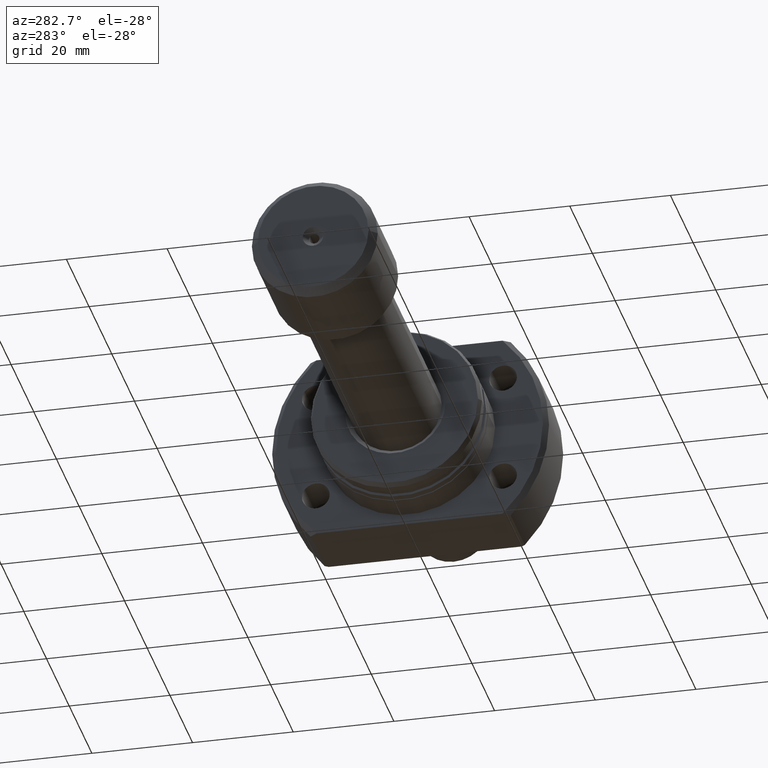
[diagram: clean part render]
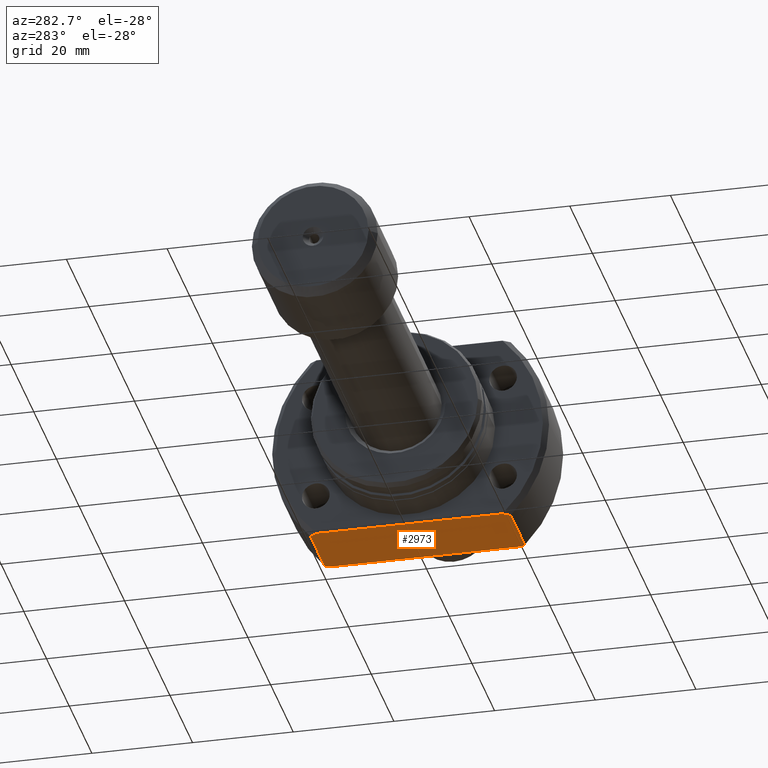
[diagram: same view with one face highlighted and labeled with its STEP entity id]
A machine part, auxiliary view. The second image highlights one B-rep face of the part: STEP entity #2973.
In plain terms, the highlighted planar face has unit normal (0, 0, 1).
Its self-contained STEP definition (entity closure, byte-faithful):
#143 = DIRECTION ( 'NONE',  ( 1.000000000000000000, -2.886466111666351885E-14, -0.000000000000000000 ) ) ;
#216 = AXIS2_PLACEMENT_3D ( 'NONE', #920, #870, #2953 ) ;
#221 = EDGE_CURVE ( 'NONE', #983, #2972, #2723, .T. ) ;
#257 = CARTESIAN_POINT ( 'NONE',  ( 26.50000000000000355, -19.18332609325086580, -19.00000000000001066 ) ) ;
#323 = VECTOR ( 'NONE', #2845, 1000.000000000000000 ) ;
#334 = CARTESIAN_POINT ( 'NONE',  ( 26.50000000000000355, 19.18332609325086580, -19.00000000000001066 ) ) ;
#336 = ORIENTED_EDGE ( 'NONE', *, *, #2434, .F. ) ;
#340 = CARTESIAN_POINT ( 'NONE',  ( 26.50000000000000355, -19.18332609325086580, -19.00000000000001066 ) ) ;
#350 = CARTESIAN_POINT ( 'NONE',  ( 26.16766778152495476, 19.64897098899369610, -19.00000000000001066 ) ) ;
#393 = VERTEX_POINT ( 'NONE', #3291 ) ;
#406 = CARTESIAN_POINT ( 'NONE',  ( 13.16251021117672160, -19.41406682004138418, -19.00000000000001066 ) ) ;
#595 = B_SPLINE_CURVE_WITH_KNOTS ( 'NONE', 3,
 ( #2747, #3574, #406, #1846 ),
 .UNSPECIFIED., .F., .F.,
 ( 4, 4 ),
 ( 0.07360185391654981701, 0.07534192973589430575 ),
 .UNSPECIFIED. ) ;
#607 = CARTESIAN_POINT ( 'NONE',  ( 12.50000000000000355, -18.47295320191106072, -19.00000000000001066 ) ) ;
#648 = CARTESIAN_POINT ( 'NONE',  ( 12.50000000000000355, 18.47295320191106072, -19.00000000000001066 ) ) ;
#678 = CARTESIAN_POINT ( 'NONE',  ( 12.50000000000000355, 18.47295320191106072, -19.00000000000001066 ) ) ;
#696 = DIRECTION ( 'NONE',  ( 9.242617352055502386E-18, -1.000000000000000000, 0.000000000000000000 ) ) ;
#725 = CARTESIAN_POINT ( 'NONE',  ( 13.16276636410033696, 19.41442114037127098, -19.00000000000001066 ) ) ;
#779 = VECTOR ( 'NONE', #143, 1000.000000000000000 ) ;
#803 = ORIENTED_EDGE ( 'NONE', *, *, #1528, .F. ) ;
#828 = LINE ( 'NONE', #3575, #779 ) ;
#835 = ORIENTED_EDGE ( 'NONE', *, *, #221, .F. ) ;
#870 = DIRECTION ( 'NONE',  ( 0.000000000000000000, 0.000000000000000000, 1.000000000000000000 ) ) ;
#902 = CARTESIAN_POINT ( 'NONE',  ( 26.00000000000007461, 19.88089535207093306, -18.99999999999999645 ) ) ;
#920 = CARTESIAN_POINT ( 'NONE',  ( -2.151057110211240797E-13, 19.88089535207168623, -19.00000000000001066 ) ) ;
#947 = ORIENTED_EDGE ( 'NONE', *, *, #1341, .F. ) ;
#974 = EDGE_CURVE ( 'NONE', #2216, #1219, #3256, .T. ) ;
#983 = VERTEX_POINT ( 'NONE', #648 ) ;
#991 = CARTESIAN_POINT ( 'NONE',  ( 26.50000000000000355, -27.00000000000000000, -19.00000000000001066 ) ) ;
#1051 = CARTESIAN_POINT ( 'NONE',  ( 12.50000000000000355, -16.99999999999999645, -19.00000000000001066 ) ) ;
#1168 = CARTESIAN_POINT ( 'NONE',  ( 26.33435831467464183, 19.41646217622441384, -19.00000000000001066 ) ) ;
#1219 = VERTEX_POINT ( 'NONE', #1530 ) ;
#1341 = EDGE_CURVE ( 'NONE', #3495, #1577, #828, .T. ) ;
#1517 = ORIENTED_EDGE ( 'NONE', *, *, #1871, .F. ) ;
#1522 = B_SPLINE_CURVE_WITH_KNOTS ( 'NONE', 3,
 ( #334, #1168, #350, #2071 ),
 .UNSPECIFIED., .F., .F.,
 ( 4, 4 ),
 ( 0.07446973138748344545, 0.07533421896860405254 ),
 .UNSPECIFIED. ) ;
#1528 = EDGE_CURVE ( 'NONE', #2972, #3495, #595, .T. ) ;
#1530 = CARTESIAN_POINT ( 'NONE',  ( 26.50000000000000355, 19.18332609325086580, -19.00000000000001066 ) ) ;
#1577 = VERTEX_POINT ( 'NONE', #3021 ) ;
#1582 = B_SPLINE_CURVE_WITH_KNOTS ( 'NONE', 3,
 ( #2249, #3379, #1953, #257 ),
 .UNSPECIFIED., .F., .F.,
 ( 4, 4 ),
 ( 0.03127512062948594601, 0.03213456893170306417 ),
 .UNSPECIFIED. ) ;
#1704 = VERTEX_POINT ( 'NONE', #902 ) ;
#1706 = LINE ( 'NONE', #3151, #323 ) ;
#1737 = ORIENTED_EDGE ( 'NONE', *, *, #3445, .F. ) ;
#1832 = FACE_OUTER_BOUND ( 'NONE', #1921, .T. ) ;
#1846 = CARTESIAN_POINT ( 'NONE',  ( 13.49999999999998757, -19.88089535207056358, -19.00000000000001066 ) ) ;
#1871 = EDGE_CURVE ( 'NONE', #393, #983, #2397, .T. ) ;
#1921 = EDGE_LOOP ( 'NONE', ( #3448, #1737, #3639, #336, #947, #803, #835, #1517 ) ) ;
#1953 = CARTESIAN_POINT ( 'NONE',  ( 26.33429591812844350, -19.41654999763448330, -19.00000000000001066 ) ) ;
#2071 = CARTESIAN_POINT ( 'NONE',  ( 26.00000000000007461, 19.88089535207093306, -18.99999999999999645 ) ) ;
#2216 = VERTEX_POINT ( 'NONE', #340 ) ;
#2249 = CARTESIAN_POINT ( 'NONE',  ( 26.00000000000007461, -19.88089535207092240, -19.00000000000001066 ) ) ;
#2397 = B_SPLINE_CURVE_WITH_KNOTS ( 'NONE', 3,
 ( #2865, #725, #2429, #678 ),
 .UNSPECIFIED., .F., .F.,
 ( 4, 4 ),
 ( 0.03128279945209441748, 0.03301205973984314840 ),
 .UNSPECIFIED. ) ;
#2429 = CARTESIAN_POINT ( 'NONE',  ( 12.82923531929442440, 18.94525104546319128, -19.00000000000001066 ) ) ;
#2434 = EDGE_CURVE ( 'NONE', #1577, #2216, #1582, .T. ) ;
#2569 = VECTOR ( 'NONE', #696, 1000.000000000000000 ) ;
#2571 = EDGE_CURVE ( 'NONE', #393, #1704, #1706, .T. ) ;
#2654 = PLANE ( 'NONE',  #216 ) ;
#2723 = LINE ( 'NONE', #1051, #2569 ) ;
#2747 = CARTESIAN_POINT ( 'NONE',  ( 12.50000000000000355, -18.47295320191106072, -19.00000000000001066 ) ) ;
#2845 = DIRECTION ( 'NONE',  ( 1.000000000000000000, -2.886466111666351885E-14, -0.000000000000000000 ) ) ;
#2865 = CARTESIAN_POINT ( 'NONE',  ( 13.49999999999998757, 19.88089535207129543, -18.99999999999999645 ) ) ;
#2953 = DIRECTION ( 'NONE',  ( 1.000000000000000000, 0.000000000000000000, -0.000000000000000000 ) ) ;
#2972 = VERTEX_POINT ( 'NONE', #607 ) ;
#2973 = ADVANCED_FACE ( 'NONE', ( #1832 ), #2654, .F. ) ;
#2977 = DIRECTION ( 'NONE',  ( -9.242617352055502386E-18, 1.000000000000000000, -0.000000000000000000 ) ) ;
#3021 = CARTESIAN_POINT ( 'NONE',  ( 26.00000000000007461, -19.88089535207092240, -19.00000000000001066 ) ) ;
#3151 = CARTESIAN_POINT ( 'NONE',  ( -2.151057110211240797E-13, 19.88089535207168268, -18.99999999999999645 ) ) ;
#3181 = CARTESIAN_POINT ( 'NONE',  ( 13.49999999999998757, -19.88089535207056358, -19.00000000000001066 ) ) ;
#3256 = LINE ( 'NONE', #991, #3364 ) ;
#3291 = CARTESIAN_POINT ( 'NONE',  ( 13.49999999999998757, 19.88089535207129543, -18.99999999999999645 ) ) ;
#3364 = VECTOR ( 'NONE', #2977, 1000.000000000000000 ) ;
#3379 = CARTESIAN_POINT ( 'NONE',  ( 26.16760613831981530, -19.64905625618671081, -19.00000000000001066 ) ) ;
#3445 = EDGE_CURVE ( 'NONE', #1219, #1704, #1522, .T. ) ;
#3448 = ORIENTED_EDGE ( 'NONE', *, *, #2571, .T. ) ;
#3495 = VERTEX_POINT ( 'NONE', #3181 ) ;
#3574 = CARTESIAN_POINT ( 'NONE',  ( 12.82897297353833288, -18.94487470268462559, -19.00000000000001066 ) ) ;
#3575 = CARTESIAN_POINT ( 'NONE',  ( -1.360023205165816762E-12, -19.88089535207017278, -19.00000000000001066 ) ) ;
#3639 = ORIENTED_EDGE ( 'NONE', *, *, #974, .F. ) ;